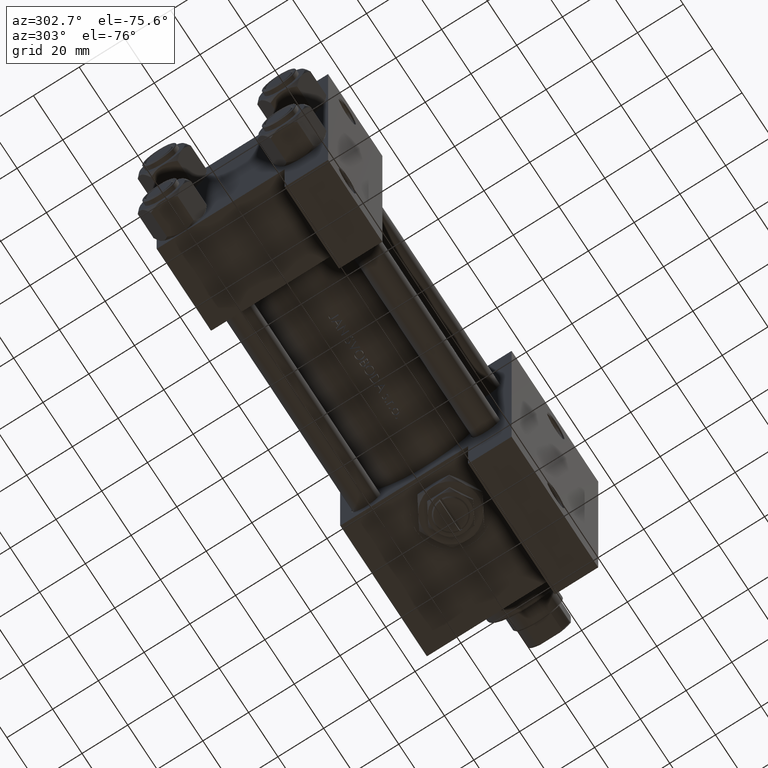
[diagram: clean part render]
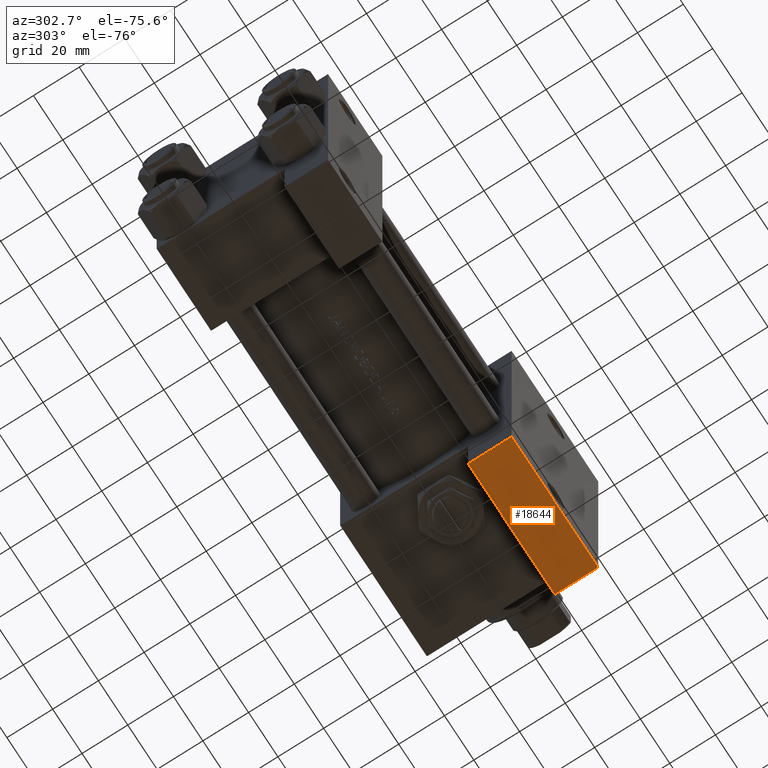
[diagram: same view with one face highlighted and labeled with its STEP entity id]
A machine part, auxiliary view. The second image highlights one B-rep face of the part: STEP entity #18644.
In plain terms, the highlighted planar face has unit normal (0, 0, -1).
Its self-contained STEP definition (entity closure, byte-faithful):
#1515 = CARTESIAN_POINT ( 'NONE',  ( 184.0000000000000284, 63.50000000000000000, -18.50000000000000000 ) ) ;
#1580 = VECTOR ( 'NONE', #32324, 1000.000000000000000 ) ;
#3307 = DIRECTION ( 'NONE',  ( 0.000000000000000000, -0.000000000000000000, 1.000000000000000000 ) ) ;
#5423 = CARTESIAN_POINT ( 'NONE',  ( 184.0000000000000284, 63.50000000000000000, -18.50000000000000000 ) ) ;
#6571 = ORIENTED_EDGE ( 'NONE', *, *, #16020, .T. ) ;
#6667 = DIRECTION ( 'NONE',  ( 1.000000000000000000, 0.000000000000000000, 0.000000000000000000 ) ) ;
#7042 = EDGE_CURVE ( 'NONE', #18761, #19213, #35568, .T. ) ;
#9897 = LINE ( 'NONE', #24863, #41652 ) ;
#10899 = VECTOR ( 'NONE', #19649, 1000.000000000000000 ) ;
#15147 = CARTESIAN_POINT ( 'NONE',  ( 125.0000000000000000, 63.50000000000000000, -37.50000000000000000 ) ) ;
#16020 = EDGE_CURVE ( 'NONE', #18761, #43549, #9897, .T. ) ;
#18031 = FACE_OUTER_BOUND ( 'NONE', #40439, .T. ) ;
#18644 = ADVANCED_FACE ( 'NONE', ( #18031 ), #25500, .T. ) ;
#18761 = VERTEX_POINT ( 'NONE', #48873 ) ;
#19213 = VERTEX_POINT ( 'NONE', #15147 ) ;
#19649 = DIRECTION ( 'NONE',  ( 0.000000000000000000, 0.000000000000000000, -1.000000000000000000 ) ) ;
#24863 = CARTESIAN_POINT ( 'NONE',  ( 125.0000000000000000, 63.50000000000000000, -18.50000000000000000 ) ) ;
#25500 = PLANE ( 'NONE',  #47300 ) ;
#25613 = LINE ( 'NONE', #40788, #33249 ) ;
#25985 = DIRECTION ( 'NONE',  ( -0.000000000000000000, 1.000000000000000000, 0.000000000000000000 ) ) ;
#27296 = ORIENTED_EDGE ( 'NONE', *, *, #44161, .F. ) ;
#29714 = CARTESIAN_POINT ( 'NONE',  ( 125.0000000000000000, 63.50000000000000000, -18.50000000000000000 ) ) ;
#32324 = DIRECTION ( 'NONE',  ( 0.000000000000000000, 0.000000000000000000, -1.000000000000000000 ) ) ;
#33249 = VECTOR ( 'NONE', #6667, 1000.000000000000000 ) ;
#34435 = CARTESIAN_POINT ( 'NONE',  ( 184.0000000000000284, 63.50000000000000000, -37.50000000000000000 ) ) ;
#35057 = LINE ( 'NONE', #5423, #10899 ) ;
#35568 = LINE ( 'NONE', #35814, #1580 ) ;
#35814 = CARTESIAN_POINT ( 'NONE',  ( 125.0000000000000000, 63.50000000000000000, -18.50000000000000000 ) ) ;
#40246 = EDGE_CURVE ( 'NONE', #43549, #44328, #35057, .T. ) ;
#40439 = EDGE_LOOP ( 'NONE', ( #27296, #46326, #6571, #42830 ) ) ;
#40788 = CARTESIAN_POINT ( 'NONE',  ( 125.0000000000000000, 63.50000000000000000, -37.50000000000000000 ) ) ;
#41652 = VECTOR ( 'NONE', #43759, 1000.000000000000000 ) ;
#42830 = ORIENTED_EDGE ( 'NONE', *, *, #40246, .T. ) ;
#43549 = VERTEX_POINT ( 'NONE', #1515 ) ;
#43759 = DIRECTION ( 'NONE',  ( 1.000000000000000000, 0.000000000000000000, 0.000000000000000000 ) ) ;
#44161 = EDGE_CURVE ( 'NONE', #19213, #44328, #25613, .T. ) ;
#44328 = VERTEX_POINT ( 'NONE', #34435 ) ;
#46326 = ORIENTED_EDGE ( 'NONE', *, *, #7042, .F. ) ;
#47300 = AXIS2_PLACEMENT_3D ( 'NONE', #29714, #25985, #3307 ) ;
#48873 = CARTESIAN_POINT ( 'NONE',  ( 125.0000000000000000, 63.50000000000000000, -18.50000000000000000 ) ) ;